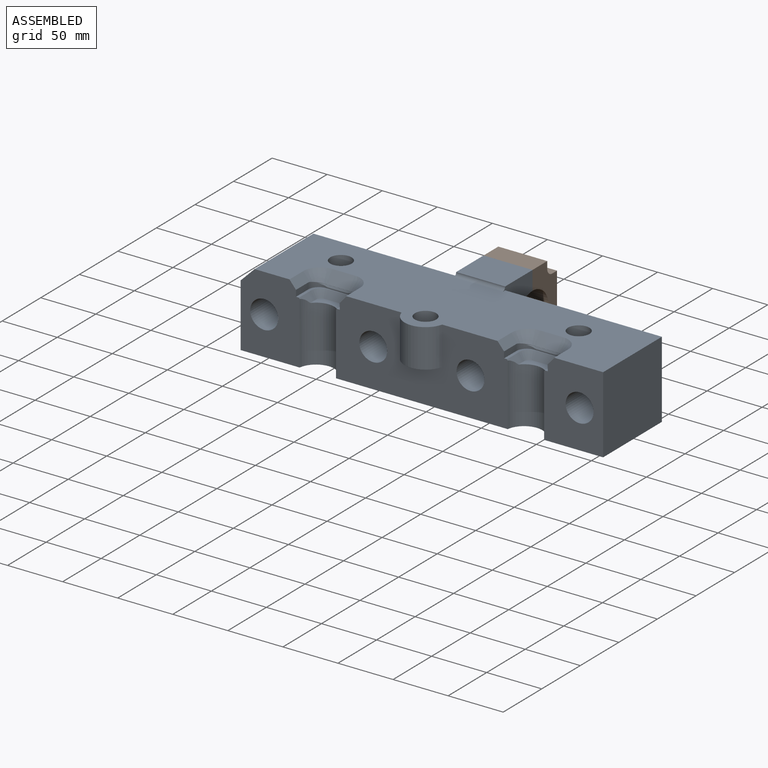
[diagram: assembled view]
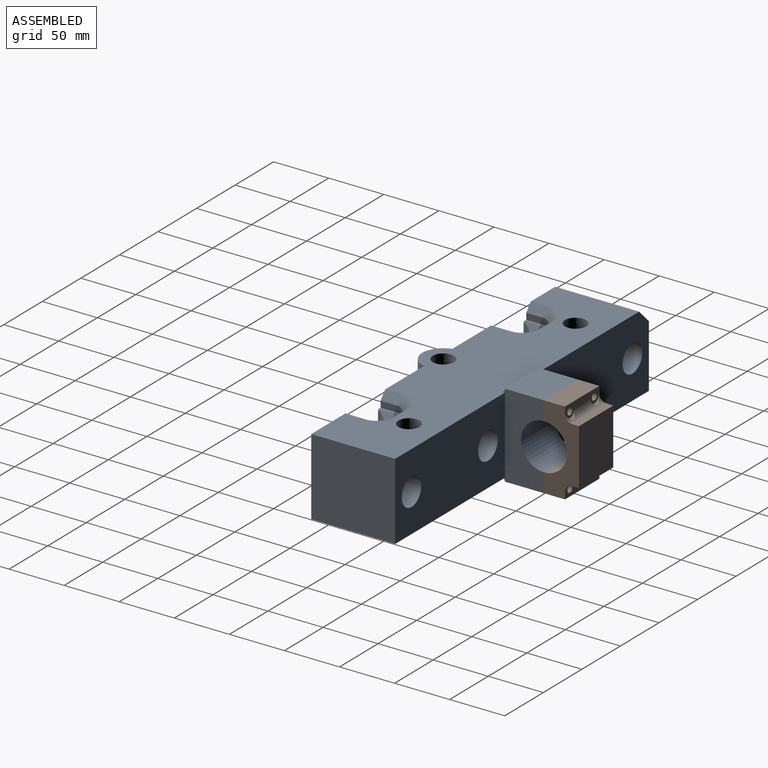
[diagram: assembled view, second angle]
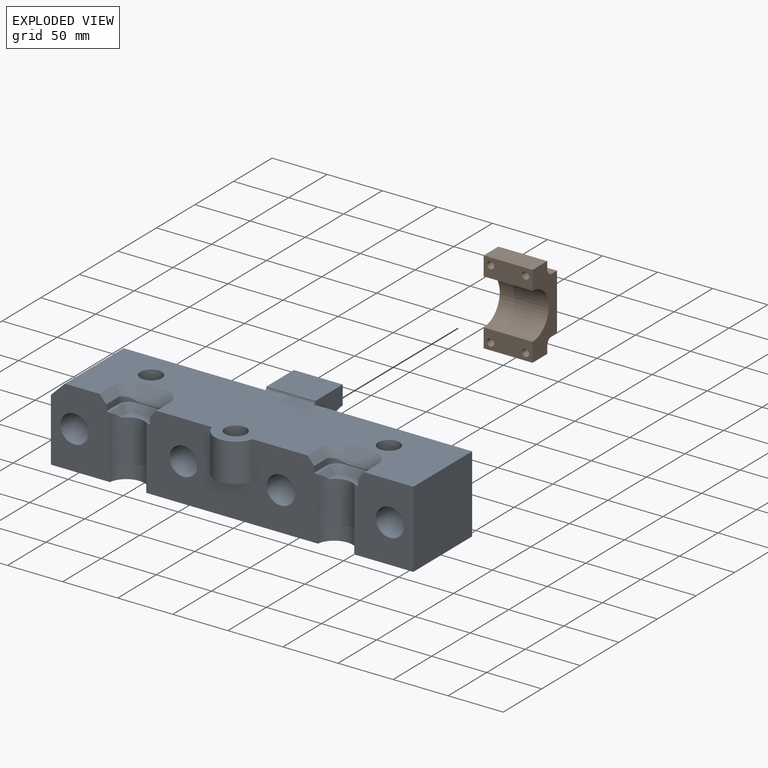
[diagram: exploded view]
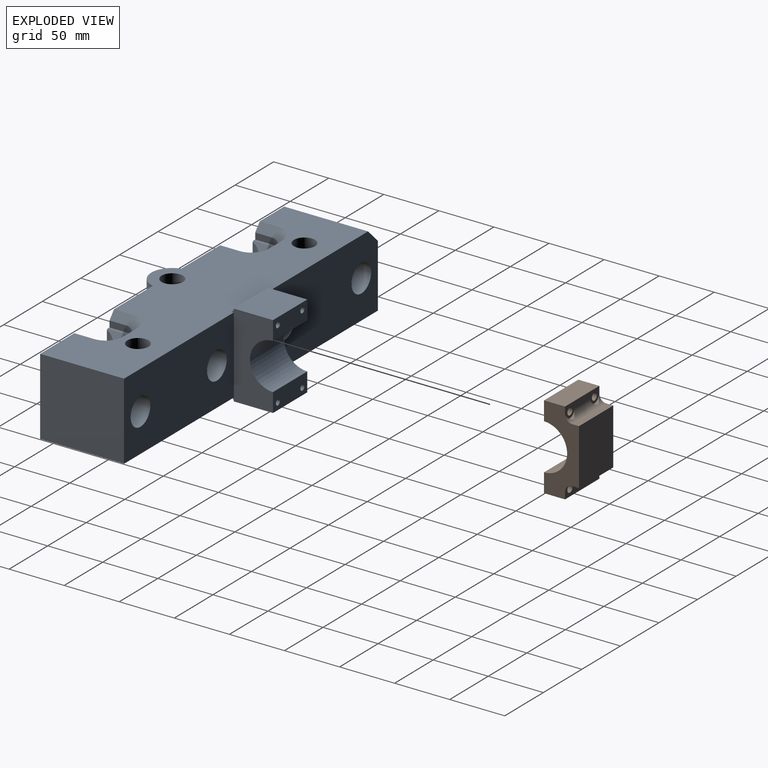
[diagram: exploded view, second angle]
ASSEMBLY  parts=2 mates=3
PART A: 89 faces, bbox 329.2x126.2x76.3 mm
  f0: plane 155.92x69.85mm, normal (0,-1,0), area 8461.9mm2, adj f4,f8,f14,f18,f20,f21,f23,f30
  f1: plane 69.85x53.6mm, normal (0,-1,0), area 3093.3mm2, adj f7,f9,f20,f21,f23,f29,f58,f74
  f2: plane 20.64x9.45mm, normal (0,-0.77,0.64), area 254.5mm2, adj f3,f20,f61,f66
  f3: cone r=4.76mm half-angle=40deg, axis (0,0,1), area 209.4mm2, adj f2,f4,f20,f66,f71
  f4: plane 17.91x7.27mm, normal (0.77,0,0.64), area 164.1mm2, adj f0,f3,f20,f67,f71
  f5: plane 20.64x9.45mm, normal (0,-0.77,0.64), area 254.5mm2, adj f6,f20,f63,f73
  f6: cone r=4.76mm half-angle=40deg, axis (0,0,1), area 209.4mm2, adj f5,f7,f20,f73,f78
  f7: plane 17.91x7.27mm, normal (0.77,0,0.64), area 164.1mm2, adj f1,f6,f20,f74,f78
  f8: plane 15.53x6.35mm, normal (-0.82,0,0.57), area 85.5mm2, adj f0,f12,f21,f64,f79
  f9: plane 15.53x6.35mm, normal (0.82,0,0.57), area 85.5mm2, adj f1,f11,f21,f64,f79
  f10: plane 15.88x6.35mm, normal (0,-0.82,0.57), area 123.1mm2, adj f11,f12,f64,f79
  f11: cone r=4.76mm half-angle=35deg, axis (0,0,1), area 85.1mm2, adj f9,f10,f64,f79
  f12: cone r=4.76mm half-angle=35deg, axis (0,0,1), area 85.1mm2, adj f8,f10,f64,f79
  f13: plane 15.53x6.35mm, normal (-0.82,0,0.57), area 85.5mm2, adj f15,f18,f19,f65,f72
  f14: plane 15.53x6.35mm, normal (0.82,0,0.57), area 85.5mm2, adj f0,f17,f18,f65,f72
  f15: cone r=4.76mm half-angle=35deg, axis (0,0,1), area 85.1mm2, adj f13,f16,f65,f72
  f16: plane 15.88x6.35mm, normal (0,-0.82,0.57), area 123.1mm2, adj f15,f17,f65,f72
  f17: cone r=4.76mm half-angle=35deg, axis (0,0,1), area 85.1mm2, adj f14,f16,f65,f72
  f18: cylinder r=16.67mm len=56.22mm, axis (0,0,1), area 2478.8mm2, adj f0,f13,f14,f19,f23,f65
  f19: plane 69.85x53.6mm, normal (0,-1,0), area 3173.9mm2, adj f13,f18,f20,f23,f32,f59,f60,f68
  f20: plane 316.41x90.49mm, normal (0,0,1), area 20242.2mm2, adj f0,f1,f2,f3,f4,f5,f6,f7
  f21: cylinder r=16.67mm len=56.22mm, axis (0,0,1), area 2478.8mm2, adj f0,f1,f8,f9,f23,f64
  f22: plane 142.33x69.85mm, normal (0,1,0), area 8928.5mm2, adj f20,f23,f27,f30,f32,f59
  f23: plane 329.11x76.2mm, normal (0,0,-1), area 24222.7mm2, adj f0,f1,f18,f19,f21,f22,f24,f26
  f24: plane 142.33x69.85mm, normal (0,1,0), area 8847.8mm2, adj f20,f23,f26,f29,f31,f58,f88
  f25: plane 44.45x35.56mm, normal (0,0,-1), area 1580.6mm2, adj f26,f27,f37,f56
  f26: plane 76.2x38.74mm, normal (-1,0,0), area 2024.2mm2, adj f20,f23,f24,f25,f28,f33,f34,f37
  f27: plane 76.2x38.74mm, normal (1,0,0), area 2024.2mm2, adj f20,f22,f23,f25,f28,f33,f34,f37
  f28: plane 44.45x35.56mm, normal (0,0,1), area 1580.6mm2, adj f26,f27,f34,f57
  f29: cylinder r=12.7mm len=76.2mm, axis (0,-1,0), area 6080.5mm2, adj f1,f24
  f30: cylinder r=12.7mm len=76.2mm, axis (0,-1,0), area 6080.5mm2, adj f0,f22
  f31: cylinder r=12.7mm len=76.2mm, axis (0,-1,0), area 6080.5mm2, adj f0,f24
  f32: cylinder r=12.7mm len=76.2mm, axis (0,-1,0), area 6080.5mm2, adj f19,f22
  f33: cylinder r=20.96mm len=44.45mm, axis (1,0,0), area 2926.2mm2, adj f26,f27,f34,f37
  f34: plane 44.45x17.15mm, normal (0,1,0), area 721.2mm2, adj f26,f27,f28,f33,f41,f45
  f35: cylinder r=19.05mm len=36.89mm, axis (0,0,1), area 1753.9mm2, adj f0,f20,f36
  f36: plane 36.89x14.29mm, normal (0,0,-1), area 390.5mm2, adj f0,f35
  f37: plane 44.45x17.15mm, normal (0,1,0), area 721.2mm2, adj f25,f26,f27,f33,f39,f43
  f38: cone r=0mm half-angle=59deg, axis (0,1,0), area 23.9mm2, adj f39
  f39: cylinder r=2.55mm len=29.21mm, axis (0,1,0), area 468.5mm2, adj f37,f38
  f40: cone r=0mm half-angle=59deg, axis (0,1,0), area 23.9mm2, adj f41
  f41: cylinder r=2.55mm len=29.21mm, axis (0,1,0), area 468.5mm2, adj f34,f40
  f42: cone r=0mm half-angle=59deg, axis (0,1,0), area 23.9mm2, adj f43
  f43: cylinder r=2.55mm len=29.21mm, axis (0,1,0), area 468.5mm2, adj f37,f42
  f44: cone r=0mm half-angle=59deg, axis (0,1,0), area 23.9mm2, adj f45
  f45: cylinder r=2.55mm len=29.21mm, axis (0,1,0), area 468.5mm2, adj f34,f44
  f46: cone r=0mm half-angle=59deg, axis (0,0,1), area 346.5mm2, adj f47
  f47: cylinder r=9.72mm len=30.69mm, axis (0,0,1), area 1875mm2, adj f20,f46
  f48: plane 12.76x1.93mm, normal (0,1,0), area 15.5mm2, adj f49,f51
  f49: cone r=0mm half-angle=59deg, axis (0,0,1), area 277mm2, adj f48,f50,f52,f53
  f50: plane 2.22x1.18mm, normal (0,-1,0), area 1.1mm2, adj f49,f51,f53
  f51: plane 16.95x4.96mm, normal (0,0,1), area 59.7mm2, adj f48,f50,f52,f53
  f52: plane 2.22x1.18mm, normal (0,-1,0), area 1.1mm2, adj f49,f51,f53
  f53: cylinder r=9.72mm len=31.75mm, axis (0,0,1), area 1896.8mm2, adj f20,f49,f50,f51,f52
  f54: cone r=0mm half-angle=59deg, axis (0,0,1), area 346.5mm2, adj f55
  f55: cylinder r=9.72mm len=30.69mm, axis (0,0,1), area 1875mm2, adj f20,f54
  f56: cylinder r=3.17mm len=44.45mm, axis (1,0,0), area 221.7mm2, adj f23,f25,f26,f27
  f57: cylinder r=3.17mm len=44.45mm, axis (-1,0,0), area 221.7mm2, adj f20,f26,f27,f28
  f58: plane 76.2x57.15mm, normal (-1,0,0), area 4354.8mm2, adj f1,f23,f24,f88
  f59: plane 76.2x69.85mm, normal (1,0,0), area 5322.6mm2, adj f19,f20,f22,f23
  f60: plane 17.91x7.27mm, normal (-0.77,0,0.64), area 164.1mm2, adj f19,f20,f61,f68,f69
  f61: cone r=4.76mm half-angle=40deg, axis (0,0,1), area 209.4mm2, adj f2,f20,f60,f66,f69
  f62: plane 17.91x7.27mm, normal (-0.77,0,0.64), area 164.1mm2, adj f0,f20,f63,f75,f76
  f63: cone r=4.76mm half-angle=40deg, axis (0,0,1), area 209.4mm2, adj f5,f20,f62,f73,f76
  f64: plane 25.4x11.87mm, normal (0,0,1), area 188.3mm2, adj f8,f9,f10,f11,f12,f21
  f65: plane 25.4x11.87mm, normal (0,0,1), area 188.3mm2, adj f13,f14,f15,f16,f17,f18
  f66: plane 20.66x0.08mm, normal (0,-1,0), area 1.6mm2, adj f2,f3,f61,f69,f71,f80
  f67: plane 15.88x5.69mm, normal (1,0,0), area 90.3mm2, adj f0,f4,f71,f72
  f68: plane 15.88x5.69mm, normal (-1,0,0), area 90.3mm2, adj f19,f60,f69,f72
  f69: cylinder r=9.53mm len=9.53mm, axis (0,0,1), area 58.5mm2, adj f60,f61,f66,f68,f70,f72,f80,f83
  f70: plane 20.67x1.37mm, normal (0,-1,0), area 20.3mm2, adj f69,f71,f72,f81,f82,f83
  f71: cylinder r=9.53mm len=9.53mm, axis (0,0,1), area 58.5mm2, adj f3,f4,f66,f67,f70,f72,f80,f81
  f72: plane 39.71x25.4mm, normal (0,0,1), area 157.9mm2, adj f0,f13,f14,f15,f16,f17,f19,f67
  f73: plane 20.66x0.08mm, normal (0,-1,0), area 1.6mm2, adj f5,f6,f63,f76,f78,f84
  f74: plane 15.88x5.69mm, normal (1,0,0), area 90.3mm2, adj f1,f7,f78,f79
  f75: plane 15.88x5.69mm, normal (-1,0,0), area 90.3mm2, adj f0,f62,f76,f79
  f76: cylinder r=9.53mm len=9.53mm, axis (0,0,1), area 58.5mm2, adj f62,f63,f73,f75,f77,f79,f84,f85
  f77: plane 20.67x1.37mm, normal (0,-1,0), area 20.3mm2, adj f76,f78,f79,f85,f86,f87
  f78: cylinder r=9.53mm len=9.53mm, axis (0,0,1), area 58.5mm2, adj f6,f7,f73,f74,f77,f79,f84,f86
  f79: plane 39.71x25.4mm, normal (0,0,1), area 157.9mm2, adj f0,f1,f8,f9,f10,f11,f12,f74
  f80: plane 32.77x3.73mm, normal (0,0,-1), area 40mm2, adj f66,f69,f71,f81,f82,f83
  f81: cone r=4.76mm half-angle=35deg, axis (0,0,1), area 13.3mm2, adj f70,f71,f80,f82
  f82: plane 15.88x2.22mm, normal (0,-0.82,0.57), area 43.1mm2, adj f70,f80,f81,f83
  f83: cone r=4.76mm half-angle=35deg, axis (0,0,1), area 13.3mm2, adj f69,f70,f80,f82
  f84: plane 32.77x3.73mm, normal (0,0,-1), area 40mm2, adj f73,f76,f78,f85,f86,f87
  f85: cone r=4.76mm half-angle=35deg, axis (0,0,1), area 13.3mm2, adj f76,f77,f84,f87
  f86: cone r=4.76mm half-angle=35deg, axis (0,0,1), area 13.3mm2, adj f77,f78,f84,f87
  f87: plane 15.88x2.22mm, normal (0,-0.82,0.57), area 43.1mm2, adj f77,f84,f85,f86
  f88: plane 76.2x12.7mm, normal (-0.71,0,0.71), area 1368.6mm2, adj f1,f20,f24,f58
PART B: 22 faces, bbox 44.5x76.2x31.8 mm
  f0: plane 44.45x11.91mm, normal (0,0,1), area 312.3mm2, adj f1,f5,f6,f9,f18,f19,f20,f21
  f1: cylinder r=6.35mm len=44.45mm, axis (1,0,0), area 332.3mm2, adj f0,f5,f6,f11,f19,f20
  f2: cylinder r=6.35mm len=44.45mm, axis (1,0,0), area 332.2mm2, adj f5,f6,f12,f13,f15,f17
  f3: plane 44.45x17.15mm, normal (0,0,-1), area 695.2mm2, adj f5,f6,f9,f10,f18,f21
  f4: plane 50.8x44.45mm, normal (0,0,1), area 2258.1mm2, adj f5,f6,f11,f13
  f5: plane 76.2x31.75mm, normal (1,0,0), area 1424.3mm2, adj f0,f1,f2,f3,f4,f7,f8,f9
  f6: plane 76.2x31.75mm, normal (-1,0,0), area 1424.3mm2, adj f0,f1,f2,f3,f4,f7,f8,f9
  f7: plane 44.45x19.05mm, normal (0,-1,0), area 846.8mm2, adj f5,f6,f8,f12
  f8: plane 44.45x17.15mm, normal (0,0,-1), area 695.2mm2, adj f5,f6,f7,f10,f14,f16
  f9: plane 44.45x19.05mm, normal (0,1,0), area 846.8mm2, adj f0,f3,f5,f6
  f10: cylinder r=20.96mm len=44.45mm, axis (1,0,0), area 2926.2mm2, adj f3,f5,f6,f8
  f11: plane 44.45x6.35mm, normal (0,1,0), area 282.3mm2, adj f1,f4,f5,f6
  f12: plane 44.45x11.91mm, normal (0,0,1), area 312.3mm2, adj f2,f5,f6,f7,f14,f15,f16,f17
  f13: plane 44.45x6.35mm, normal (0,-1,0), area 282.3mm2, adj f2,f4,f5,f6
  f14: cylinder r=3.26mm len=19.05mm, axis (0,0,1), area 390.7mm2, adj f8,f12
  f15: cylinder r=5.56mm len=11.11mm, axis (0,0,1), area 26.1mm2, adj f2,f12
  f16: cylinder r=3.26mm len=19.05mm, axis (0,0,1), area 390.7mm2, adj f8,f12
  f17: cylinder r=5.56mm len=11.11mm, axis (0,0,1), area 26.1mm2, adj f2,f12
  f18: cylinder r=3.26mm len=19.05mm, axis (0,0,1), area 390.7mm2, adj f0,f3
  f19: cylinder r=5.56mm len=11.11mm, axis (0,0,1), area 26.1mm2, adj f0,f1
  f20: cylinder r=5.56mm len=11.11mm, axis (0,0,1), area 26.1mm2, adj f0,f1
  f21: cylinder r=3.26mm len=19.05mm, axis (0,0,1), area 390.7mm2, adj f0,f3
PLACE A at identity fixed
PLACE B rot(axis=(-1,0,0),90deg) t=(0,56.2,-38.1)mm
MATE planar B.f3 <-> A.f37  axis (0,-1,0) through (-22.22,56.2,-67.63)mm
MATE cylindrical B.f20 <-> A.f42  axis (0,1,0) through (15.88,75.25,-69.85)mm
MATE cylindrical B.f18 <-> A.f38  axis (0,1,0) through (-15.88,75.25,-69.85)mm
